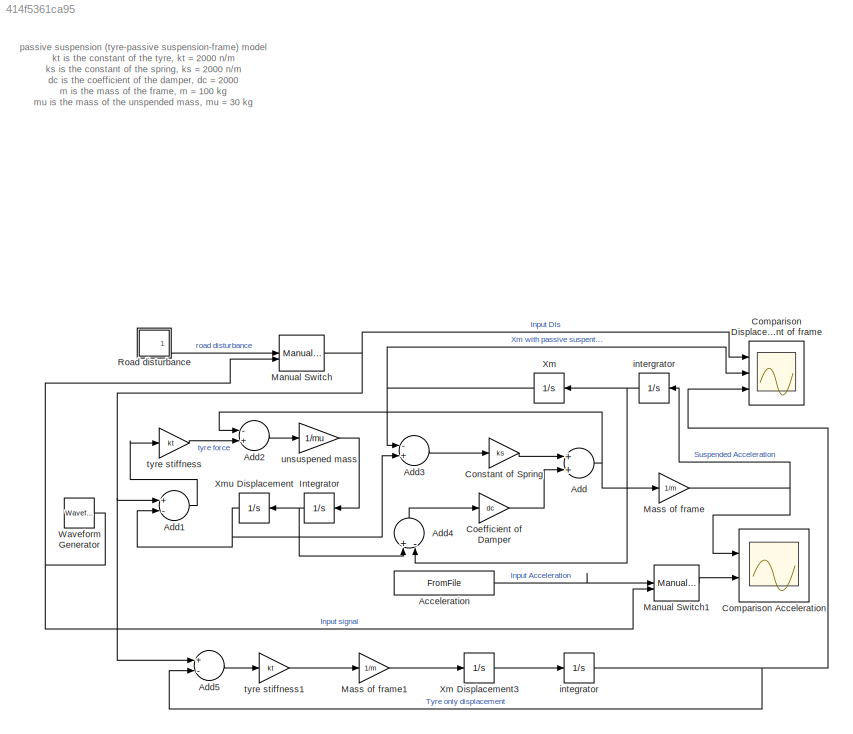
MODEL slx_414f5361ca95
KIND model
CONFIG AbsTol = auto
CONFIG EnableMultiTasking = off
CONFIG FixedStep = auto
CONFIG MaxStep = auto
CONFIG MinStep = auto
CONFIG RelTol = 1e-3
CONFIG SampleTimeConstraint = Unconstrained
CONFIG Solver = VariableStepAuto
CONFIG SolverName = VariableStepAuto
CONFIG StartTime = 0.0
CONFIG StopTime = 92
BLOCK [FromFile] Acceleration
  ExtrapolationAfterLastDataPoint = Hold last value
  ExtrapolationBeforeFirstDataPoint = Hold first value
  FileName = REC0826_filteracce.mat
  SampleTime = 1/3200
BLOCK [Sum] Add
  InputSameDT = off
  OutDataTypeStr = Inherit: Inherit via internal rule
  Ports = [2, 1]
  SaturateOnIntegerOverflow = off
BLOCK [Sum] Add1
  InputSameDT = off
  Inputs = +-
  OutDataTypeStr = Inherit: Inherit via internal rule
  Ports = [2, 1]
  SaturateOnIntegerOverflow = off
BLOCK [Sum] Add2
  InputSameDT = off
  Inputs = -+
  OutDataTypeStr = Inherit: Inherit via internal rule
  Ports = [2, 1]
  SaturateOnIntegerOverflow = off
BLOCK [Sum] Add3
  InputSameDT = off
  Inputs = -+
  OutDataTypeStr = Inherit: Inherit via internal rule
  Ports = [2, 1]
  SaturateOnIntegerOverflow = off
BLOCK [Sum] Add4
  InputSameDT = off
  Inputs = +-
  OutDataTypeStr = Inherit: Inherit via internal rule
  Ports = [2, 1]
  SaturateOnIntegerOverflow = off
BLOCK [Sum] Add5
  InputSameDT = off
  Inputs = +-
  OutDataTypeStr = Inherit: Inherit via internal rule
  Ports = [2, 1]
  SaturateOnIntegerOverflow = off
BLOCK [Gain] Coefficient of Damper
  Gain = dc
  OutDataTypeStr = Inherit: Inherit via internal rule
  ParamDataTypeStr = Inherit: Inherit via internal rule
  SaturateOnIntegerOverflow = off
BLOCK [Scope] Comparison Acceleration
  NumInputPorts = 2
  Ports = [2]
  ScopeSpecificationString = Simulink.scopes.TimeScopeBlockCfg('CurrentConfiguration', extmgr.ConfigurationSet(extmgr.Configuration('Core','General UI',true,'FigureColor',[1 1 1]),extmgr.Configuration('Core','Source UI',true),extmgr.Configuration('Sources','WiredSimulink',true,'SampleTime','1/3200','DataLoggingVariableName','ScopeData1'),extmgr.Configuration('Visuals','Time Domain',true,'PlotType','Line','SerializedDisplays',...<+1846ch>
BLOCK [Scope] Comparison Displacement of frame
  NumInputPorts = 3
  Ports = [3]
  ScopeSpecificationString = Simulink.scopes.TimeScopeBlockCfg('CurrentConfiguration', extmgr.ConfigurationSet(extmgr.Configuration('Core','General UI',true,'FigureColor',[1 1 1]),extmgr.Configuration('Core','Source UI',true),extmgr.Configuration('Sources','WiredSimulink',true,'SampleTime','1/3200'),extmgr.Configuration('Visuals','Time Domain',true,'PlotType','Line','SerializedDisplays',{struct('MinYLimReal','-0.01624','MaxYL...<+1854ch>
BLOCK [Gain] Constant of Spring
  Gain = ks
  OutDataTypeStr = Inherit: Inherit via internal rule
  ParamDataTypeStr = Inherit: Inherit via internal rule
  SaturateOnIntegerOverflow = off
BLOCK [Integrator] Integrator
  Ports = [1, 1]
BLOCK [ManualSwitch] Manual Switch
BLOCK [ManualSwitch] Manual Switch1
BLOCK [Gain] Mass of frame
  Gain = 1/m
  OutDataTypeStr = Inherit: Inherit via internal rule
  ParamDataTypeStr = Inherit: Inherit via internal rule
  SaturateOnIntegerOverflow = off
BLOCK [Gain] Mass of frame1
  Gain = 1/m
  OutDataTypeStr = Inherit: Inherit via internal rule
  ParamDataTypeStr = Inherit: Inherit via internal rule
  SaturateOnIntegerOverflow = off
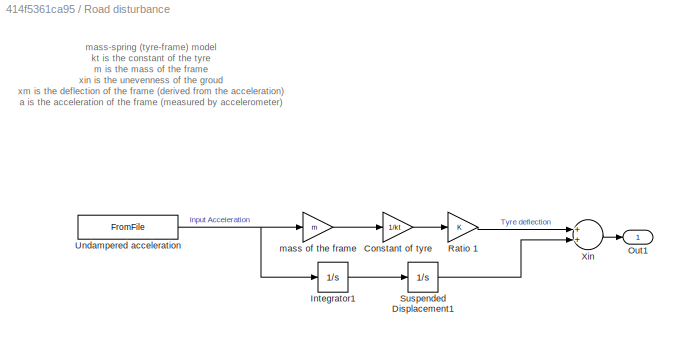
BLOCK [SubSystem] Road disturbance
  Ports = [0, 1]
  RequestExecContextInheritance = off
  Variant = off
BLOCK [Gain] Road disturbance/Constant of tyre
  Gain = 1/kt
  OutDataTypeStr = Inherit: Inherit via internal rule
  ParamDataTypeStr = Inherit: Inherit via internal rule
  SaturateOnIntegerOverflow = off
BLOCK [Integrator] Road disturbance/Integrator1
  Ports = [1, 1]
BLOCK [Outport] Road disturbance/Out1
  IconDisplay = Signal name
BLOCK [Gain] Road disturbance/Ratio 1
  OutDataTypeStr = Inherit: Inherit via internal rule
  ParamDataTypeStr = Inherit: Inherit via internal rule
  SaturateOnIntegerOverflow = off
BLOCK [Integrator] Road disturbance/Suspended Displacement1
  Ports = [1, 1]
BLOCK [FromFile] Road disturbance/Undampered acceleration
  ExtrapolationAfterLastDataPoint = Hold last value
  ExtrapolationBeforeFirstDataPoint = Hold first value
  FileName = REC0826_filteracce.mat
  SampleTime = 1/3200
BLOCK [Sum] Road disturbance/Xin
  InputSameDT = off
  OutDataTypeStr = Inherit: Inherit via internal rule
  Ports = [2, 1]
  SaturateOnIntegerOverflow = off
BLOCK [Gain] Road disturbance/mass of the frame
  Gain = m
  OutDataTypeStr = Inherit: Inherit via internal rule
  ParamDataTypeStr = Inherit: Inherit via internal rule
  SaturateOnIntegerOverflow = off
BLOCK [Reference] Waveform Generator  REF=simulink/Sources/Waveform
Generator
  Ports = [0, 1]
  SourceBlock = simulink/Sources/Waveform\nGenerator
  SourceProductBaseCode = SL
  SourceProductName = Simulink
  SourceType = WaveformGenerator
BLOCK [Integrator] Xm
  Ports = [1, 1]
BLOCK [Integrator] Xm Displacement3
  Ports = [1, 1]
BLOCK [Integrator] Xmu Displacement
  Ports = [1, 1]
BLOCK [Integrator] integrator
  Ports = [1, 1]
BLOCK [Integrator] intergrator
  Ports = [1, 1]
BLOCK [Gain] tyre stiffness
  Gain = kt
  OutDataTypeStr = Inherit: Inherit via internal rule
  ParamDataTypeStr = Inherit: Inherit via internal rule
  SaturateOnIntegerOverflow = off
BLOCK [Gain] tyre stiffness1
  Gain = kt
  OutDataTypeStr = Inherit: Inherit via internal rule
  ParamDataTypeStr = Inherit: Inherit via internal rule
  SaturateOnIntegerOverflow = off
BLOCK [Gain] unsuspened mass
  Gain = 1/mu
  OutDataTypeStr = Inherit: Inherit via internal rule
  ParamDataTypeStr = Inherit: Inherit via internal rule
  SaturateOnIntegerOverflow = off
ANNOTATION (root): passive suspension (tyre-passive suspension-frame) model kt is the constant of the tyre, kt = 2000 n/m ks is the constant of the spring, ks = 2000 n/m dc is the coefficient of the damper, dc = 2000 m is the mass of the frame, m = 100 kg mu is the mass of the unspended mass, mu = 30 kg Xin is the unevenness of the groud (Calculated from collected data) Xm is the displacement of the frame Xmu is the...<+321ch>
ANNOTATION Road disturbance: mass-spring (tyre-frame) model kt is the constant of the tyre m is the mass of the frame xin is the unevenness of the groud xm is the deflection of the frame (derived from the acceleration) a is the acceleration of the frame (measured by accelerometer) ma = (xin - xm)*kt Hence: xin =ma/kt + xm Designed by: Mengbin Min 24/01/2018 Checked by: Shen Hin Lim 24/01/2018
LINE Acceleration:1 -> Manual Switch1:1
LINE Add1:1 -> tyre stiffness:1
LINE Add2:1 -> unsuspened mass:1
LINE Add3:1 -> Constant of Spring:1
LINE Add4:1 -> Coefficient of Damper:1
LINE Add5:1 -> tyre stiffness1:1
NET Add:1 -> Add2:1, Mass of frame:1
LINE Coefficient of Damper:1 -> Add:2
LINE Constant of Spring:1 -> Add:1
NET Integrator:1 -> Add4:1, Xmu Displacement:1
LINE Manual Switch1:1 -> Comparison Acceleration:2
NET Manual Switch:1 -> Add1:1, Add5:1, Comparison Displacement of frame:1
LINE Mass of frame1:1 -> Xm Displacement3:1
NET Mass of frame:1 -> Comparison Acceleration:1, intergrator:1
LINE Road disturbance/Constant of tyre:1 -> Road disturbance/Ratio 1:1
LINE Road disturbance/Integrator1:1 -> Road disturbance/Suspended Displacement1:1
LINE Road disturbance/Ratio 1:1 -> Road disturbance/Xin:1
LINE Road disturbance/Suspended Displacement1:1 -> Road disturbance/Xin:2
NET Road disturbance/Undampered acceleration:1 -> Road disturbance/Integrator1:1, Road disturbance/mass of the frame:1
LINE Road disturbance/Xin:1 -> Road disturbance/Out1:1
LINE Road disturbance/mass of the frame:1 -> Road disturbance/Constant of tyre:1
LINE Road disturbance:1 -> Manual Switch:1
NET Waveform Generator:1 -> Manual Switch1:2, Manual Switch:2
LINE Xm Displacement3:1 -> integrator:1
NET Xm:1 -> Add3:1, Comparison Displacement of frame:2
NET Xmu Displacement:1 -> Add1:2, Add3:2
NET integrator:1 -> Add5:2, Comparison Displacement of frame:3
NET intergrator:1 -> Add4:2, Xm:1
LINE tyre stiffness1:1 -> Mass of frame1:1
LINE tyre stiffness:1 -> Add2:2
LINE unsuspened mass:1 -> Integrator:1
note: NET lines group one-source signal fan-out (src -> all destinations, sorted); 1:1 wires keep LINE
